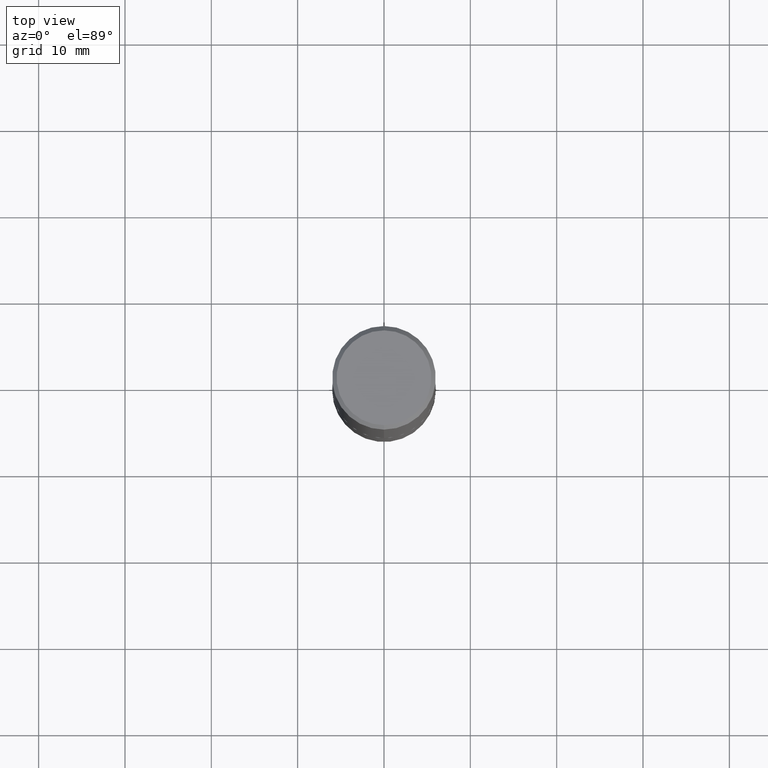
[diagram: clean part render]
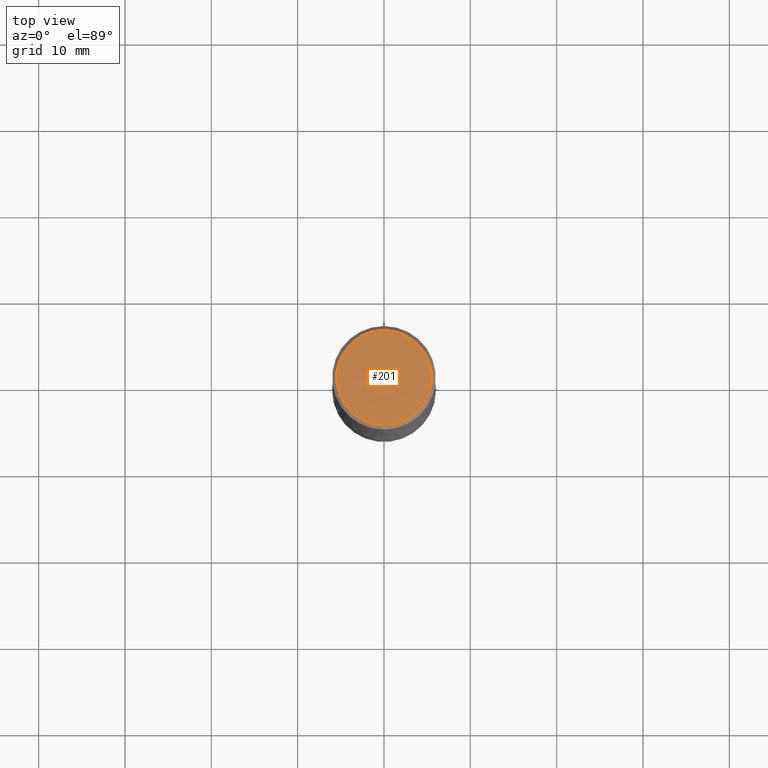
[diagram: same view with one face highlighted and labeled with its STEP entity id]
A machine part, top view. The second image highlights one B-rep face of the part: STEP entity #201.
In plain terms, the highlighted planar face has unit normal (0, -0, -1).
Its self-contained STEP definition (entity closure, byte-faithful):
#18 = DIRECTION ( 'NONE',  ( -6.982962677686265922E-15, -1.000000000000000000, 3.484849272499618535E-15 ) ) ;
#54 = DIRECTION ( 'NONE',  ( 2.450099953360414843E-29, -3.484849272499618930E-15, -1.000000000000000000 ) ) ;
#58 = CARTESIAN_POINT ( 'NONE',  ( -2.474856915300181060E-45, 3.520061828088122209E-31, 1.010104470189393763E-16 ) ) ;
#66 = AXIS2_PLACEMENT_3D ( 'NONE', #215, #54, #415 ) ;
#76 = EDGE_CURVE ( 'NONE', #198, #225, #290, .T. ) ;
#81 = CARTESIAN_POINT ( 'NONE',  ( 1.579546157692633424E-15, 0.2161999999999999478, -6.524139656954780766E-16 ) ) ;
#97 = EDGE_LOOP ( 'NONE', ( #299, #263 ) ) ;
#178 = CARTESIAN_POINT ( 'NONE',  ( -2.474856915300181060E-45, 3.520061828088122209E-31, 1.010104470189393763E-16 ) ) ;
#184 = DIRECTION ( 'NONE',  ( -2.450099953360415403E-29, 3.484849272499618930E-15, 1.000000000000000000 ) ) ;
#198 = VERTEX_POINT ( 'NONE', #81 ) ;
#201 = ADVANCED_FACE ( 'NONE', ( #354 ), #222, .F. ) ;
#215 = CARTESIAN_POINT ( 'NONE',  ( 1.509716530915770323E-15, 0.2161999999999999478, -7.029191892049475614E-16 ) ) ;
#222 = PLANE ( 'NONE',  #66 ) ;
#225 = VERTEX_POINT ( 'NONE', #384 ) ;
#231 = EDGE_CURVE ( 'NONE', #225, #198, #358, .T. ) ;
#234 = AXIS2_PLACEMENT_3D ( 'NONE', #178, #276, #406 ) ;
#257 = AXIS2_PLACEMENT_3D ( 'NONE', #58, #184, #18 ) ;
#263 = ORIENTED_EDGE ( 'NONE', *, *, #231, .T. ) ;
#276 = DIRECTION ( 'NONE',  ( -2.450099953360415403E-29, 3.484849272499618930E-15, 1.000000000000000000 ) ) ;
#290 = CIRCLE ( 'NONE', #234, 0.2161999999999999478 ) ;
#299 = ORIENTED_EDGE ( 'NONE', *, *, #76, .T. ) ;
#354 = FACE_OUTER_BOUND ( 'NONE', #97, .T. ) ;
#358 = CIRCLE ( 'NONE', #257, 0.2161999999999999478 ) ;
#384 = CARTESIAN_POINT ( 'NONE',  ( -1.551844647095919747E-15, -0.2161999999999999478, 8.544348597333568046E-16 ) ) ;
#406 = DIRECTION ( 'NONE',  ( -6.982962677686265922E-15, -1.000000000000000000, 3.484849272499618535E-15 ) ) ;
#415 = DIRECTION ( 'NONE',  ( 6.982962677686265922E-15, 1.000000000000000000, -3.484849272499618930E-15 ) ) ;